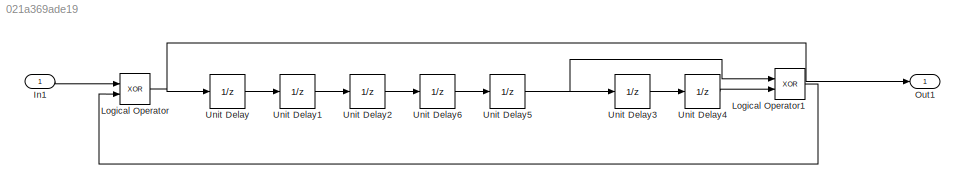
MODEL slx_021a369ade19
KIND model
BLOCK [Inport] In1
  IconDisplay = Port number
BLOCK [Logic] Logical Operator
  AllPortsSameDT = off
  Operator = XOR
  OutDataTypeStr = fixdt(1,16)
  Ports = [2, 1]
BLOCK [Logic] Logical Operator1
  AllPortsSameDT = off
  Operator = XOR
  OutDataTypeStr = fixdt(1,16)
  Ports = [2, 1]
BLOCK [Outport] Out1
  IconDisplay = Port number
BLOCK [UnitDelay] Unit Delay
  InputProcessing = Elements as channels (sample based)
  SampleTime = -1
BLOCK [UnitDelay] Unit Delay1
  InputProcessing = Elements as channels (sample based)
  SampleTime = -1
BLOCK [UnitDelay] Unit Delay2
  InputProcessing = Elements as channels (sample based)
  SampleTime = -1
BLOCK [UnitDelay] Unit Delay3
  InputProcessing = Elements as channels (sample based)
  SampleTime = -1
BLOCK [UnitDelay] Unit Delay4
  InputProcessing = Elements as channels (sample based)
  SampleTime = -1
BLOCK [UnitDelay] Unit Delay5
  InputProcessing = Elements as channels (sample based)
  SampleTime = -1
BLOCK [UnitDelay] Unit Delay6
  InputProcessing = Elements as channels (sample based)
  SampleTime = -1
LINE In1:1 -> Logical Operator:1
LINE Logical Operator1:1 -> Logical Operator:2
NET Logical Operator:1 -> Out1:1, Unit Delay:1
LINE Unit Delay1:1 -> Unit Delay2:1
LINE Unit Delay2:1 -> Unit Delay6:1
LINE Unit Delay3:1 -> Unit Delay4:1
LINE Unit Delay4:1 -> Logical Operator1:2
NET Unit Delay5:1 -> Logical Operator1:1, Unit Delay3:1
LINE Unit Delay6:1 -> Unit Delay5:1
LINE Unit Delay:1 -> Unit Delay1:1
note: NET lines group one-source signal fan-out (src -> all destinations, sorted); 1:1 wires keep LINE
